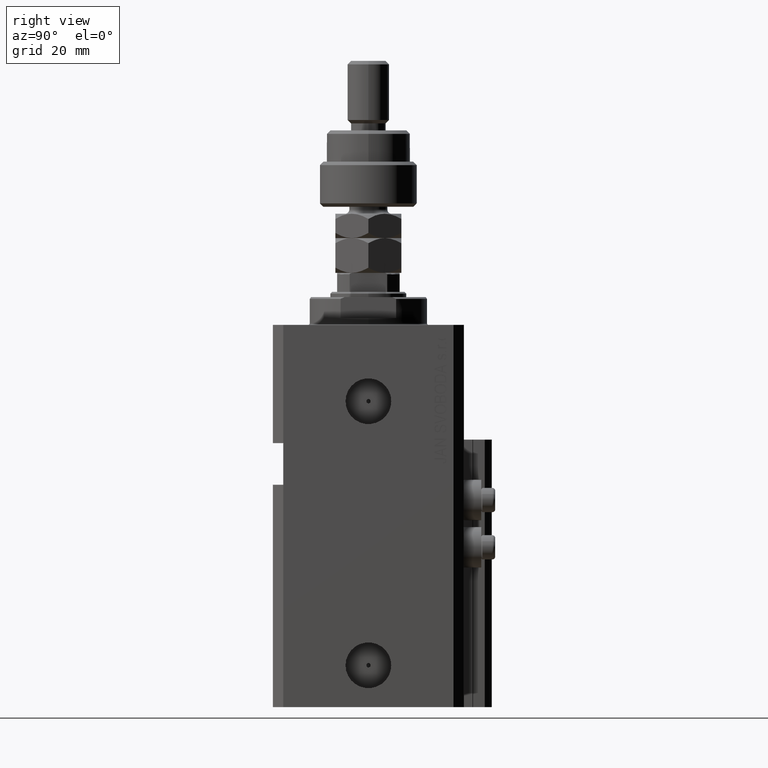
[diagram: clean part render]
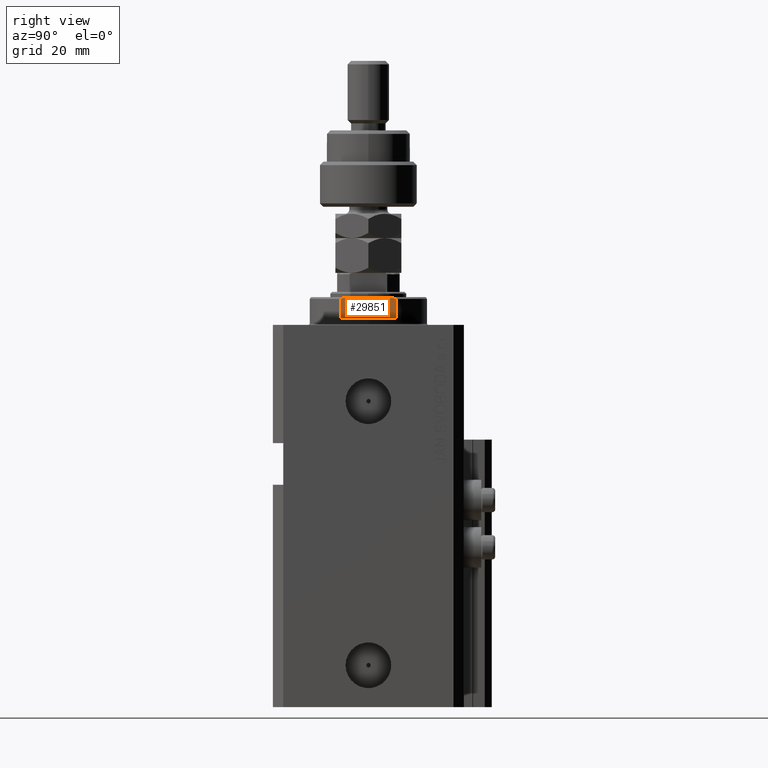
[diagram: same view with one face highlighted and labeled with its STEP entity id]
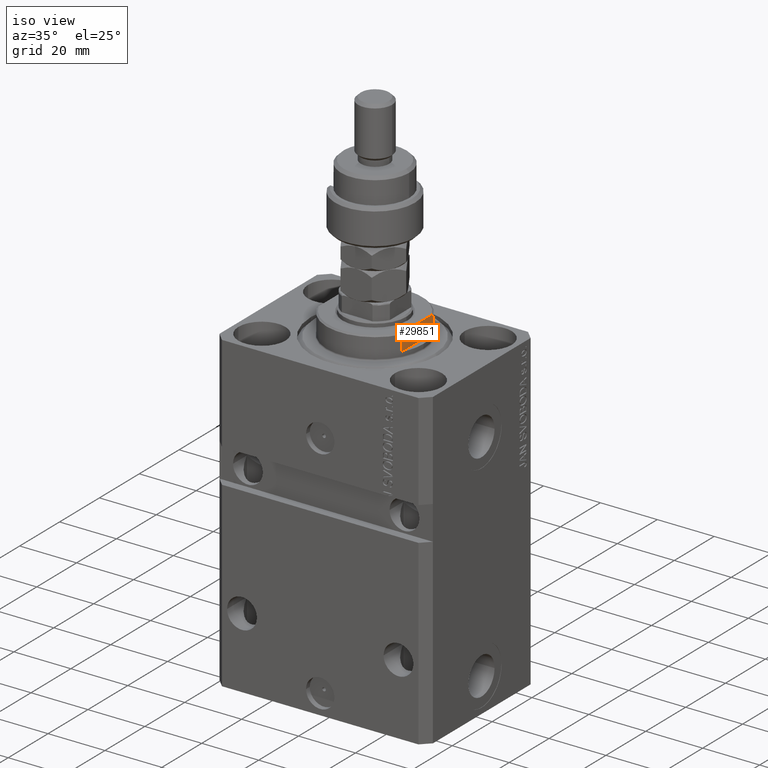
[diagram: same view with one face highlighted and labeled with its STEP entity id]
A machine part, right view. The second image highlights one B-rep face of the part: STEP entity #29851.
A second angle (iso view) of the same face is appended — the face is thin or edge-on in the first view.
In plain terms, the highlighted planar face has unit normal (-1, 0, 0).
Its self-contained STEP definition (entity closure, byte-faithful):
#701 = EDGE_CURVE ( 'NONE', #24975, #29182, #30323, .T. ) ;
#1501 = B_SPLINE_CURVE_WITH_KNOTS ( 'NONE', 3,
 ( #38711, #30849, #19673, #34901 ),
 .UNSPECIFIED., .F., .F.,
 ( 4, 4 ),
 ( 0.04875332532859059931, 0.04998905627745663105 ),
 .UNSPECIFIED. ) ;
#3325 = DIRECTION ( 'NONE',  ( -0.000000000000000000, -1.000000000000000000, -0.000000000000000000 ) ) ;
#4062 = ORIENTED_EDGE ( 'NONE', *, *, #33205, .F. ) ;
#5245 = CARTESIAN_POINT ( 'NONE',  ( -14.99999999999999645, 6.873863542433765517, -8.000000000000000000 ) ) ;
#5615 = EDGE_LOOP ( 'NONE', ( #17953, #11718, #23640, #10189, #4062, #35037 ) ) ;
#6007 = DIRECTION ( 'NONE',  ( 0.000000000000000000, 0.000000000000000000, -1.000000000000000000 ) ) ;
#6167 = VECTOR ( 'NONE', #42008, 1000.000000000000000 ) ;
#6771 = DIRECTION ( 'NONE',  ( -0.000000000000000000, -1.000000000000000000, -0.000000000000000000 ) ) ;
#7508 = AXIS2_PLACEMENT_3D ( 'NONE', #9821, #17975, #6007 ) ;
#7806 = EDGE_CURVE ( 'NONE', #24975, #32964, #17471, .T. ) ;
#8485 = CARTESIAN_POINT ( 'NONE',  ( -14.99999999999999645, -8.000000000000003553, -2.000000000000000000 ) ) ;
#9212 = CARTESIAN_POINT ( 'NONE',  ( -15.00000000000000000, 8.000000000000001776, -7.500000000000007105 ) ) ;
#9821 = CARTESIAN_POINT ( 'NONE',  ( -15.00000000000000000, -42.42640687119285303, -2.000000000000000000 ) ) ;
#9989 = CARTESIAN_POINT ( 'NONE',  ( -14.99999999999999645, 6.873863542433765517, -8.000000000000000000 ) ) ;
#10189 = ORIENTED_EDGE ( 'NONE', *, *, #41433, .F. ) ;
#10457 = VERTEX_POINT ( 'NONE', #34430 ) ;
#11718 = ORIENTED_EDGE ( 'NONE', *, *, #39213, .T. ) ;
#13122 = CARTESIAN_POINT ( 'NONE',  ( -15.00000000000000000, -8.000000000000001776, -7.500000000000007105 ) ) ;
#15196 = DIRECTION ( 'NONE',  ( 0.000000000000000000, 0.000000000000000000, -1.000000000000000000 ) ) ;
#16562 = CARTESIAN_POINT ( 'NONE',  ( -14.99999999999999645, 8.000000000000003553, -2.000000000000000000 ) ) ;
#17200 = PLANE ( 'NONE',  #7508 ) ;
#17471 = B_SPLINE_CURVE_WITH_KNOTS ( 'NONE', 3,
 ( #9212, #29286, #20910, #9989 ),
 .UNSPECIFIED., .F., .F.,
 ( 4, 4 ),
 ( 0.03336039268697044147, 0.03459498301323850333 ),
 .UNSPECIFIED. ) ;
#17953 = ORIENTED_EDGE ( 'NONE', *, *, #7806, .T. ) ;
#17975 = DIRECTION ( 'NONE',  ( 1.000000000000000000, 0.000000000000000000, 0.000000000000000000 ) ) ;
#18936 = VERTEX_POINT ( 'NONE', #13122 ) ;
#19673 = CARTESIAN_POINT ( 'NONE',  ( -15.00000000000000000, -7.629305121525810307, -7.674444648693742543 ) ) ;
#20910 = CARTESIAN_POINT ( 'NONE',  ( -15.00000000000000000, 7.253126193285931222, -7.842000017654665811 ) ) ;
#22144 = LINE ( 'NONE', #38118, #41526 ) ;
#23640 = ORIENTED_EDGE ( 'NONE', *, *, #35505, .T. ) ;
#24975 = VERTEX_POINT ( 'NONE', #47328 ) ;
#24982 = VERTEX_POINT ( 'NONE', #8485 ) ;
#25393 = VECTOR ( 'NONE', #15196, 1000.000000000000000 ) ;
#26591 = LINE ( 'NONE', #41572, #34451 ) ;
#29182 = VERTEX_POINT ( 'NONE', #16562 ) ;
#29286 = CARTESIAN_POINT ( 'NONE',  ( -15.00000000000000000, 7.628315461082482152, -7.674910371255308839 ) ) ;
#29851 = ADVANCED_FACE ( 'NONE', ( #32675 ), #17200, .F. ) ;
#30323 = LINE ( 'NONE', #45809, #6167 ) ;
#30849 = CARTESIAN_POINT ( 'NONE',  ( -15.00000000000000000, -7.254193676168128491, -7.841555306644508505 ) ) ;
#32675 = FACE_OUTER_BOUND ( 'NONE', #5615, .T. ) ;
#32964 = VERTEX_POINT ( 'NONE', #5245 ) ;
#33205 = EDGE_CURVE ( 'NONE', #29182, #24982, #26591, .T. ) ;
#34430 = CARTESIAN_POINT ( 'NONE',  ( -14.99999999999999645, -6.873863542433765517, -8.000000000000000000 ) ) ;
#34451 = VECTOR ( 'NONE', #6771, 1000.000000000000000 ) ;
#34901 = CARTESIAN_POINT ( 'NONE',  ( -15.00000000000000000, -8.000000000000001776, -7.500000000000007105 ) ) ;
#35037 = ORIENTED_EDGE ( 'NONE', *, *, #701, .F. ) ;
#35505 = EDGE_CURVE ( 'NONE', #10457, #18936, #1501, .T. ) ;
#38118 = CARTESIAN_POINT ( 'NONE',  ( -15.00000000000000000, -42.42640687119285303, -8.000000000000000000 ) ) ;
#38711 = CARTESIAN_POINT ( 'NONE',  ( -14.99999999999999645, -6.873863542433765517, -8.000000000000000000 ) ) ;
#39213 = EDGE_CURVE ( 'NONE', #32964, #10457, #22144, .T. ) ;
#41433 = EDGE_CURVE ( 'NONE', #24982, #18936, #41848, .T. ) ;
#41526 = VECTOR ( 'NONE', #3325, 1000.000000000000000 ) ;
#41572 = CARTESIAN_POINT ( 'NONE',  ( -15.00000000000000000, -42.42640687119285303, -2.000000000000000000 ) ) ;
#41848 = LINE ( 'NONE', #46391, #25393 ) ;
#42008 = DIRECTION ( 'NONE',  ( -0.000000000000000000, -0.000000000000000000, 1.000000000000000000 ) ) ;
#45809 = CARTESIAN_POINT ( 'NONE',  ( -15.00000000000000000, 8.000000000000001776, -8.000000000000000000 ) ) ;
#46391 = CARTESIAN_POINT ( 'NONE',  ( -15.00000000000000000, -8.000000000000001776, -8.000000000000000000 ) ) ;
#47328 = CARTESIAN_POINT ( 'NONE',  ( -15.00000000000000000, 8.000000000000001776, -7.500000000000007105 ) ) ;